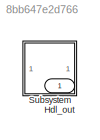
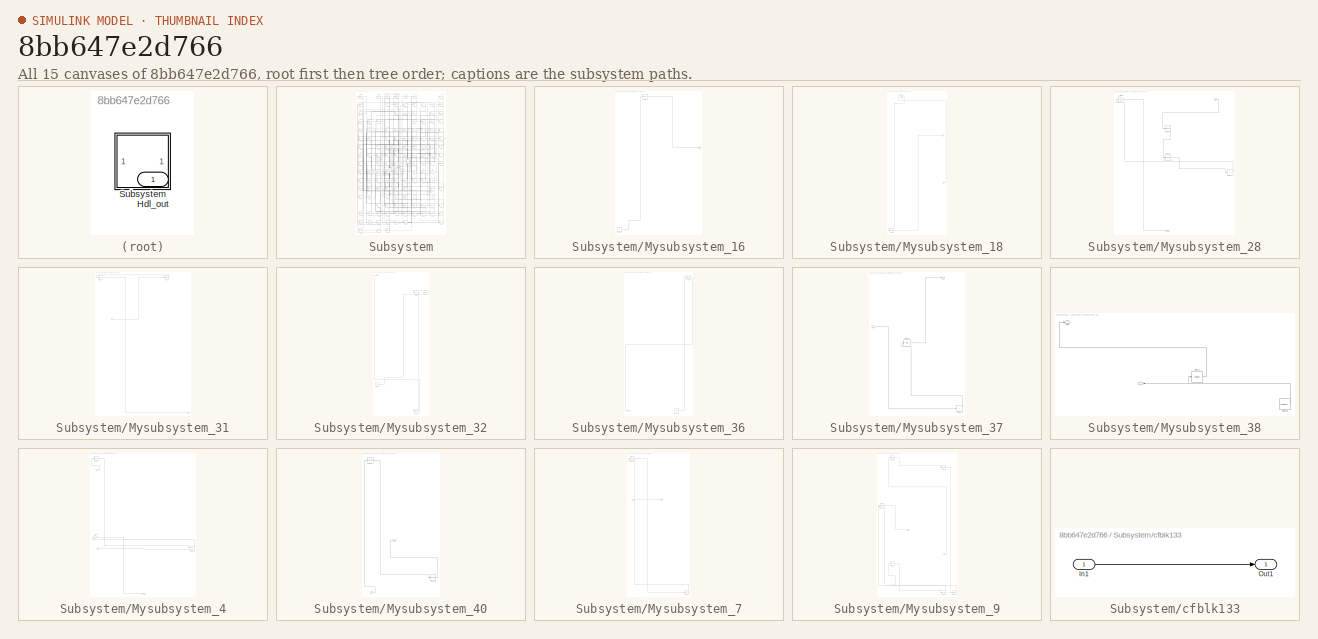
[diagram: thumbnail index - all 15 canvases of the model, root first then tree order]
MODEL slx_8bb647e2d766
KIND model
CONFIG AbsTol = auto
CONFIG EnableMultiTasking = off
CONFIG FixedStep = auto
CONFIG MaxStep = auto
CONFIG MinStep = auto
CONFIG RelTol = 1e-3
CONFIG SampleTimeConstraint = Unconstrained
CONFIG SolverName = VariableStepAuto
CONFIG StartTime = 0.0
CONFIG StopTime = 10.0
BLOCK [Outport] Hdl_out
  OutDataTypeStr = uint8
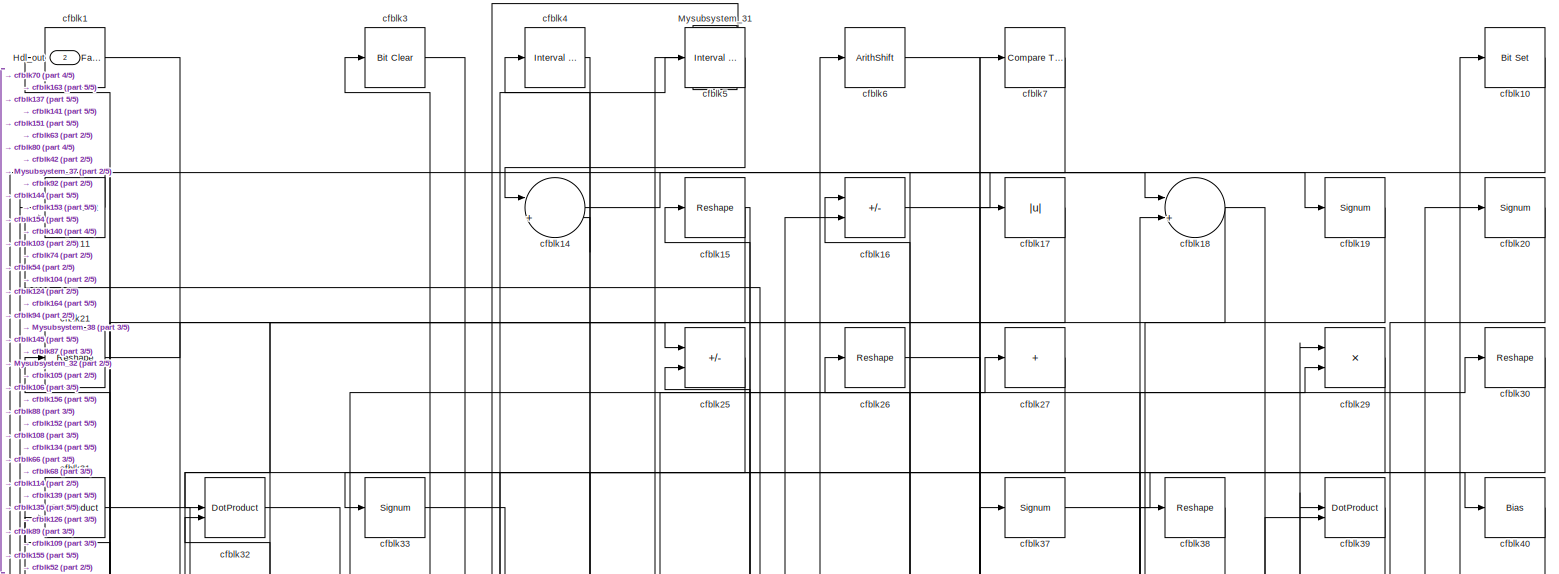
[diagram: Subsystem - part 1/5, full width, top band]
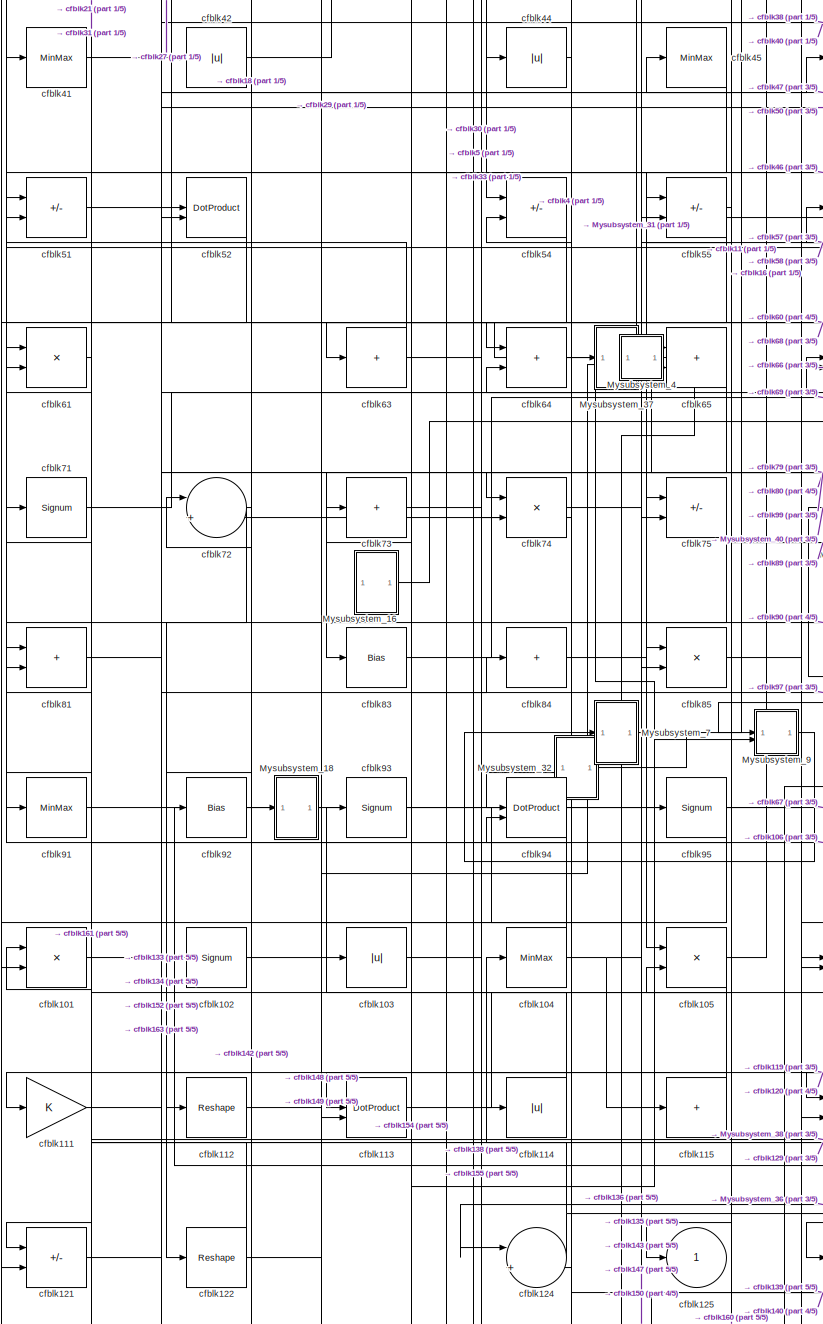
[diagram: Subsystem - part 2/5, middle left region]
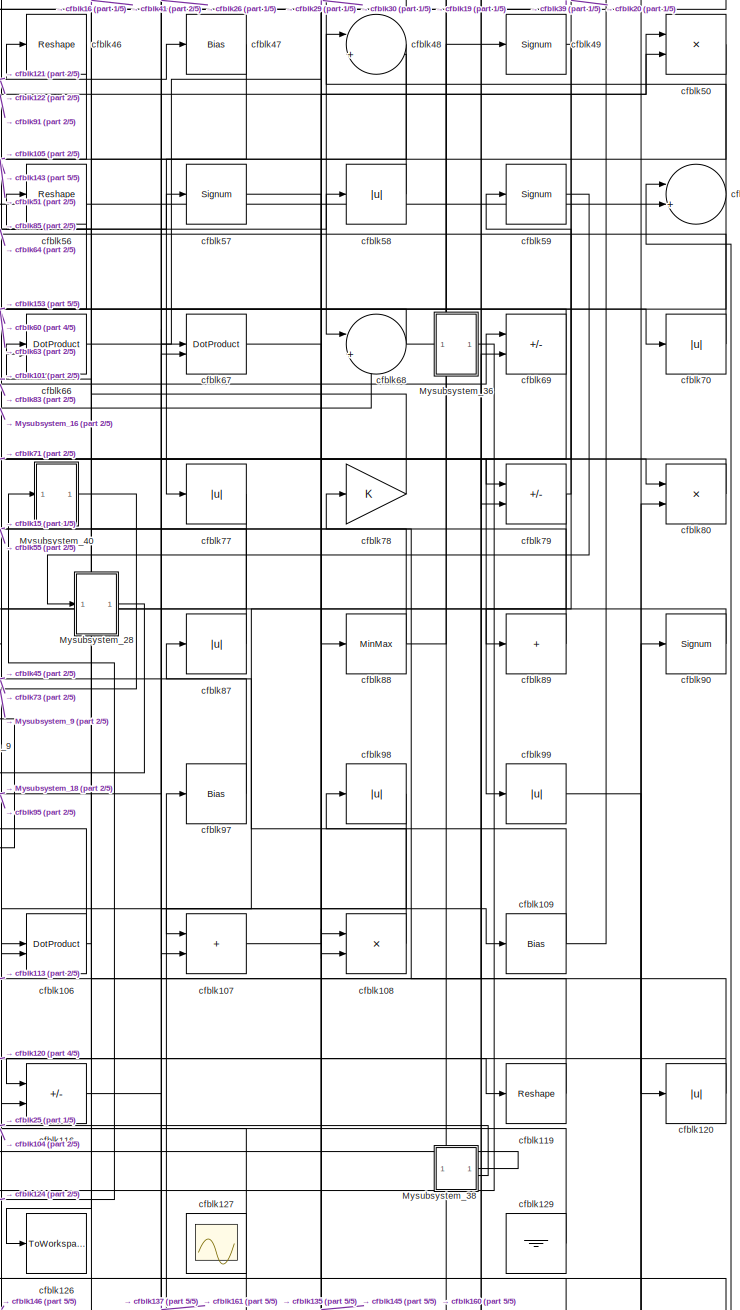
[diagram: Subsystem - part 3/5, middle right region]
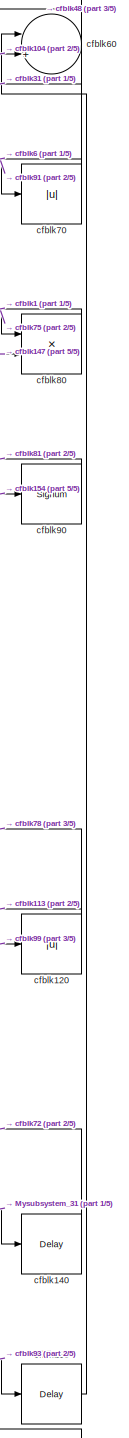
[diagram: Subsystem - part 4/5, middle right region]
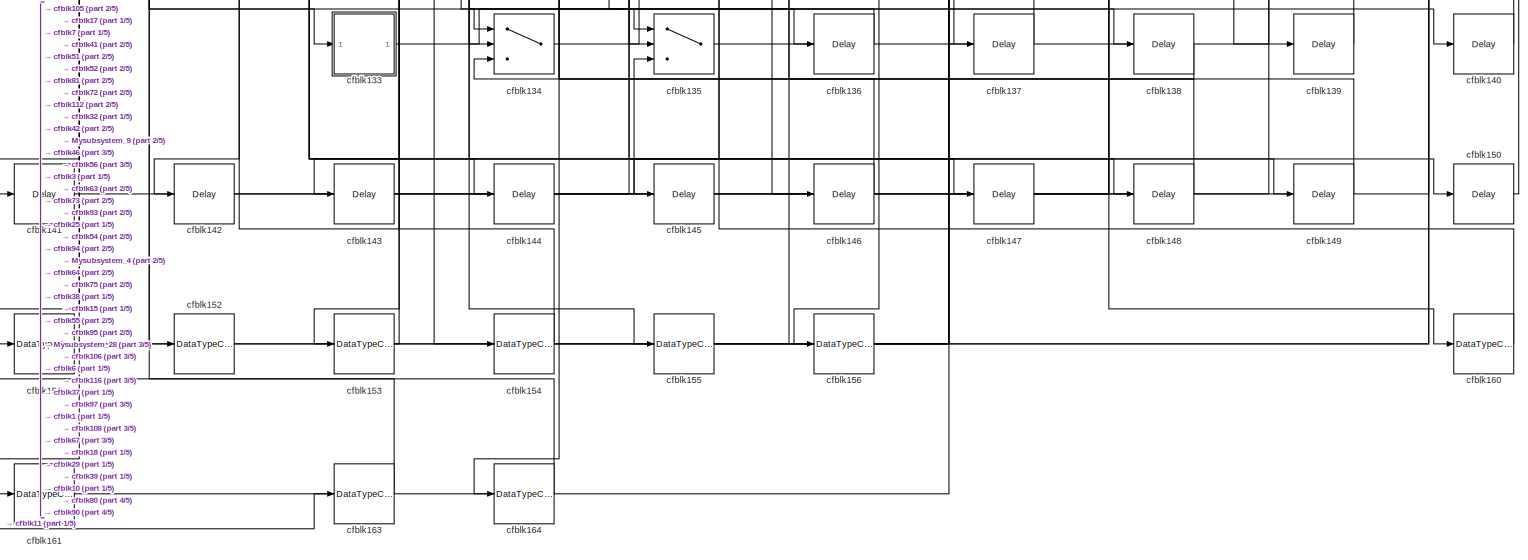
[diagram: Subsystem - part 5/5, full width, bottom band]
BLOCK [SubSystem] Subsystem
BLOCK [Outport] Subsystem/Hdl_out
  OutDataTypeStr = uint8
  Port = 2
BLOCK [SubSystem] Subsystem/Mysubsystem_16
  RTWFcnName = Mysubsystem_16
  RTWFcnNameOpts = User specified
  RTWFileNameOpts = Use function name
  RTWSystemCode = Reusable function
  TreatAsAtomicUnit = on
BLOCK [Outport] Subsystem/Mysubsystem_16/Out1
BLOCK [Constant] Subsystem/Mysubsystem_16/cfblk132
  SampleTime = -1
BLOCK [Bias] Subsystem/Mysubsystem_16/cfblk24
  Bias = 0.0
  SaturateOnIntegerOverflow = off
BLOCK [SubSystem] Subsystem/Mysubsystem_18
  RTWFcnName = Mysubsystem_18
  RTWFcnNameOpts = User specified
  RTWFileNameOpts = Use function name
  RTWSystemCode = Reusable function
  TreatAsAtomicUnit = on
BLOCK [Inport] Subsystem/Mysubsystem_18/In1
BLOCK [Outport] Subsystem/Mysubsystem_18/Out1
BLOCK [DataTypeConversion] Subsystem/Mysubsystem_18/cfblk162
  OutDataTypeStr = uint8
  RndMeth = Floor
  SaturateOnIntegerOverflow = off
BLOCK [Gain] Subsystem/Mysubsystem_18/cfblk23
BLOCK [SubSystem] Subsystem/Mysubsystem_28
  RTWFcnName = Mysubsystem_28
  RTWFcnNameOpts = User specified
  RTWFileNameOpts = Use function name
  RTWSystemCode = Reusable function
  TreatAsAtomicUnit = on
BLOCK [Inport] Subsystem/Mysubsystem_28/In1
BLOCK [Outport] Subsystem/Mysubsystem_28/Out1
BLOCK [Sum] Subsystem/Mysubsystem_28/cfblk110
  IconShape = rectangular
  Inputs = +
BLOCK [Gain] Subsystem/Mysubsystem_28/cfblk53
BLOCK [MinMax] Subsystem/Mysubsystem_28/cfblk76
BLOCK [Reshape] Subsystem/Mysubsystem_28/cfblk96
BLOCK [SubSystem] Subsystem/Mysubsystem_31
  RTWFcnName = Mysubsystem_31
  RTWFcnNameOpts = User specified
  RTWFileNameOpts = Use function name
  RTWSystemCode = Reusable function
  TreatAsAtomicUnit = on
BLOCK [Inport] Subsystem/Mysubsystem_31/U
BLOCK [Reference] Subsystem/Mysubsystem_31/cfblk2  REF=simulink/Logic and Bit
Operations/Bit Set
  LibrarySourceBlock = hdlsllib/Logic and Bit\nOperations/Bit Set
  SourceBlock = simulink/Logic and Bit\nOperations/Bit Set
  SourceType = Bit Set
BLOCK [Reference] Subsystem/Mysubsystem_31/cfblk8  REF=hdlsllib/Logic and Bit
Operations/Detect Rise
Nonnegative
  SourceBlock = hdlsllib/Logic and Bit\nOperations/Detect Rise\nNonnegative
  SourceType = Detect Rise Nonnegative
BLOCK [Outport] Subsystem/Mysubsystem_31/y
BLOCK [SubSystem] Subsystem/Mysubsystem_32
  RTWFcnName = Mysubsystem_32
  RTWFcnNameOpts = User specified
  RTWFileNameOpts = Use function name
  RTWSystemCode = Reusable function
  TreatAsAtomicUnit = on
BLOCK [Outport] Subsystem/Mysubsystem_32/Out1
BLOCK [Ground] Subsystem/Mysubsystem_32/cfblk131
BLOCK [DataTypeConversion] Subsystem/Mysubsystem_32/cfblk165
  OutDataTypeStr = uint8
  RndMeth = Floor
  SaturateOnIntegerOverflow = off
BLOCK [Bias] Subsystem/Mysubsystem_32/cfblk35
  Bias = 0.0
  SaturateOnIntegerOverflow = off
BLOCK [MinMax] Subsystem/Mysubsystem_32/cfblk36
BLOCK [SubSystem] Subsystem/Mysubsystem_36
  RTWFcnName = Mysubsystem_36
  RTWFcnNameOpts = User specified
  RTWFileNameOpts = Use function name
  RTWSystemCode = Reusable function
  TreatAsAtomicUnit = on
BLOCK [Ground] Subsystem/Mysubsystem_36/cfblk128
BLOCK [Reference] Subsystem/Mysubsystem_36/cfblk9  REF=hdlsllib/Logic and Bit
Operations/Interval Test
  SourceBlock = hdlsllib/Logic and Bit\nOperations/Interval Test
  SourceType = Interval Test
BLOCK [Outport] Subsystem/Mysubsystem_36/y
BLOCK [SubSystem] Subsystem/Mysubsystem_37
  RTWFcnName = Mysubsystem_37
  RTWFcnNameOpts = User specified
  RTWFileNameOpts = Use function name
  RTWSystemCode = Reusable function
  TreatAsAtomicUnit = on
BLOCK [Inport] Subsystem/Mysubsystem_37/In1
BLOCK [Outport] Subsystem/Mysubsystem_37/Out1
BLOCK [Bias] Subsystem/Mysubsystem_37/cfblk43
  Bias = 0.0
  SaturateOnIntegerOverflow = off
BLOCK [Sum] Subsystem/Mysubsystem_37/cfblk86
  IconShape = rectangular
  Inputs = +
BLOCK [SubSystem] Subsystem/Mysubsystem_38
  RTWFcnName = Mysubsystem_38
  RTWFcnNameOpts = User specified
  RTWFileNameOpts = Use function name
  RTWSystemCode = Reusable function
  TreatAsAtomicUnit = on
BLOCK [Outport] Subsystem/Mysubsystem_38/Out1
BLOCK [MinMax] Subsystem/Mysubsystem_38/cfblk117
BLOCK [Reference] Subsystem/Mysubsystem_38/cfblk130  REF=hdlsllib/Sources/Counter
Free-Running
  SourceBlock = hdlsllib/Sources/Counter\nFree-Running
  SourceType = Counter Free-Running
BLOCK [Outport] Subsystem/Mysubsystem_38/y
  Port = 2
BLOCK [SubSystem] Subsystem/Mysubsystem_4
  RTWFcnName = Mysubsystem_4
  RTWFcnNameOpts = User specified
  RTWFileNameOpts = Use function name
  RTWSystemCode = Reusable function
  TreatAsAtomicUnit = on
BLOCK [Inport] Subsystem/Mysubsystem_4/In1
BLOCK [Inport] Subsystem/Mysubsystem_4/In2
  Port = 2
BLOCK [Outport] Subsystem/Mysubsystem_4/Out1
BLOCK [Sum] Subsystem/Mysubsystem_4/cfblk100
  IconShape = rectangular
  Inputs = +-
BLOCK [Bias] Subsystem/Mysubsystem_4/cfblk12
  Bias = 0.0
  SaturateOnIntegerOverflow = off
BLOCK [Gain] Subsystem/Mysubsystem_4/cfblk82
BLOCK [SubSystem] Subsystem/Mysubsystem_40
  RTWFcnName = Mysubsystem_40
  RTWFcnNameOpts = User specified
  RTWFileNameOpts = Use function name
  RTWSystemCode = Reusable function
  TreatAsAtomicUnit = on
BLOCK [Inport] Subsystem/Mysubsystem_40/In1
BLOCK [Outport] Subsystem/Mysubsystem_40/Out1
BLOCK [Reshape] Subsystem/Mysubsystem_40/cfblk118
BLOCK [Reshape] Subsystem/Mysubsystem_40/cfblk34
BLOCK [SubSystem] Subsystem/Mysubsystem_7
  RTWFcnName = Mysubsystem_7
  RTWFcnNameOpts = User specified
  RTWFileNameOpts = Use function name
  RTWSystemCode = Reusable function
  TreatAsAtomicUnit = on
BLOCK [Inport] Subsystem/Mysubsystem_7/In1
BLOCK [Outport] Subsystem/Mysubsystem_7/Out1
BLOCK [DataTypeConversion] Subsystem/Mysubsystem_7/cfblk157
  OutDataTypeStr = uint8
  RndMeth = Floor
  SaturateOnIntegerOverflow = off
BLOCK [Reshape] Subsystem/Mysubsystem_7/cfblk22
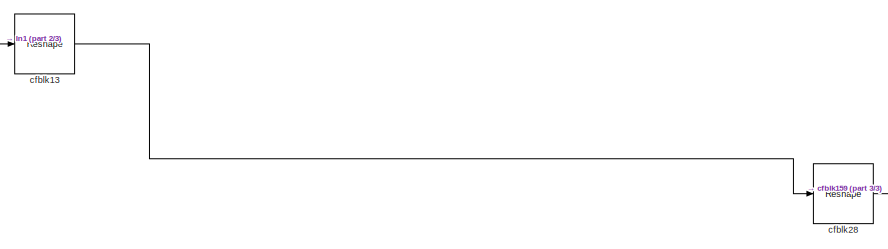
[diagram: Subsystem/Mysubsystem_9 - part 1/3, top center region]
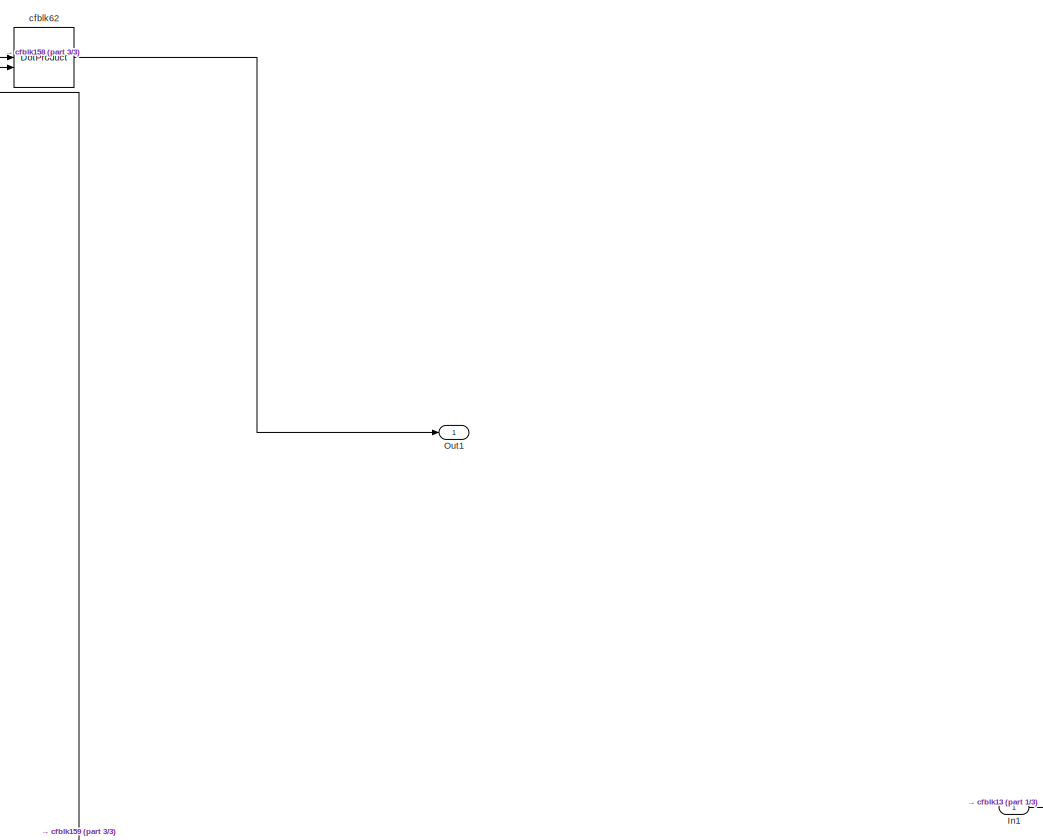
[diagram: Subsystem/Mysubsystem_9 - part 2/3, full width, middle band]
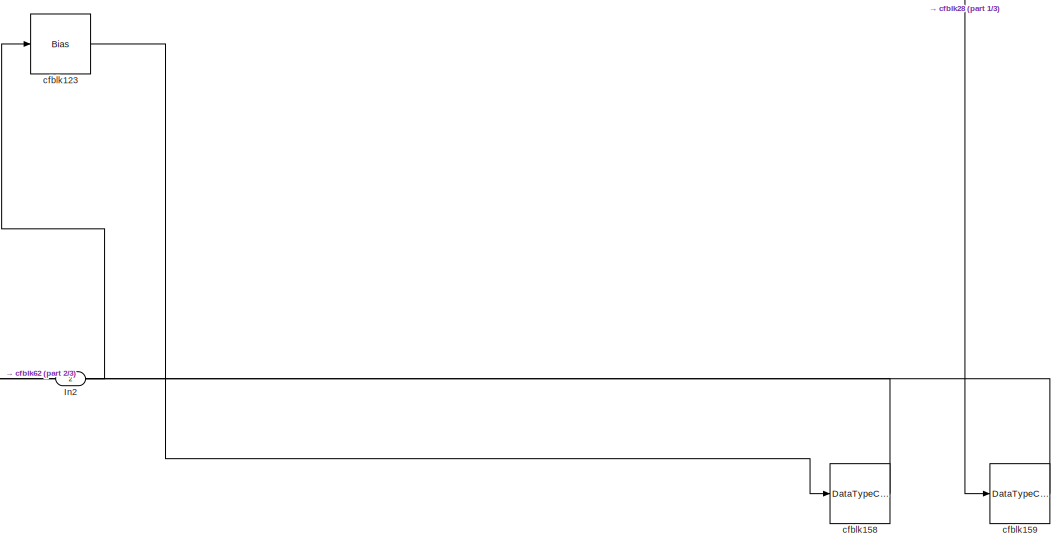
[diagram: Subsystem/Mysubsystem_9 - part 3/3, full width, bottom band]
BLOCK [SubSystem] Subsystem/Mysubsystem_9
  RTWFcnName = Mysubsystem_9
  RTWFcnNameOpts = User specified
  RTWFileNameOpts = Use function name
  RTWSystemCode = Reusable function
  TreatAsAtomicUnit = on
BLOCK [Inport] Subsystem/Mysubsystem_9/In1
BLOCK [Inport] Subsystem/Mysubsystem_9/In2
  Port = 2
BLOCK [Outport] Subsystem/Mysubsystem_9/Out1
BLOCK [Bias] Subsystem/Mysubsystem_9/cfblk123
  Bias = 0.0
  SaturateOnIntegerOverflow = off
BLOCK [Reshape] Subsystem/Mysubsystem_9/cfblk13
BLOCK [DataTypeConversion] Subsystem/Mysubsystem_9/cfblk158
  OutDataTypeStr = uint8
  RndMeth = Floor
  SaturateOnIntegerOverflow = off
BLOCK [DataTypeConversion] Subsystem/Mysubsystem_9/cfblk159
  OutDataTypeStr = uint8
  RndMeth = Floor
  SaturateOnIntegerOverflow = off
BLOCK [Reshape] Subsystem/Mysubsystem_9/cfblk28
BLOCK [DotProduct] Subsystem/Mysubsystem_9/cfblk62
  OutDataTypeStr = Inherit: Inherit via internal rule
BLOCK [Reference] Subsystem/cfblk1  REF=hdlsllib/Logic and Bit
Operations/Detect Fall
Negative
  SourceBlock = hdlsllib/Logic and Bit\nOperations/Detect Fall\nNegative
  SourceType = Detect Fall Negative
BLOCK [Reference] Subsystem/cfblk10  REF=simulink/Logic and Bit
Operations/Bit Set
  LibrarySourceBlock = hdlsllib/Logic and Bit\nOperations/Bit Set
  SourceBlock = simulink/Logic and Bit\nOperations/Bit Set
  SourceType = Bit Set
BLOCK [Product] Subsystem/cfblk101
  Inputs = */
  OutDataTypeStr = uint8
  RndMeth = Zero
  SaturateOnIntegerOverflow = on
BLOCK [Signum] Subsystem/cfblk102
BLOCK [Abs] Subsystem/cfblk103
  OutDataTypeStr = uint8
  SaturateOnIntegerOverflow = off
BLOCK [MinMax] Subsystem/cfblk104
  OutDataTypeStr = uint8
BLOCK [Product] Subsystem/cfblk105
  Inputs = */
  OutDataTypeStr = uint8
  RndMeth = Zero
  SaturateOnIntegerOverflow = on
BLOCK [DotProduct] Subsystem/cfblk106
  OutDataTypeStr = uint8
BLOCK [Sum] Subsystem/cfblk107
  IconShape = rectangular
  OutDataTypeStr = uint8
BLOCK [Product] Subsystem/cfblk108
  Inputs = */
  OutDataTypeStr = uint8
  RndMeth = Zero
  SaturateOnIntegerOverflow = on
BLOCK [Bias] Subsystem/cfblk109
  Bias = 0.0
  SaturateOnIntegerOverflow = off
BLOCK [DotProduct] Subsystem/cfblk11
  OutDataTypeStr = uint8
BLOCK [Gain] Subsystem/cfblk111
  OutDataTypeStr = uint8
BLOCK [Reshape] Subsystem/cfblk112
BLOCK [DotProduct] Subsystem/cfblk113
  OutDataTypeStr = uint8
BLOCK [Abs] Subsystem/cfblk114
  OutDataTypeStr = uint8
  SaturateOnIntegerOverflow = off
BLOCK [Sum] Subsystem/cfblk115
  IconShape = rectangular
  Inputs = +
  OutDataTypeStr = uint8
BLOCK [Sum] Subsystem/cfblk116
  IconShape = rectangular
  Inputs = +-
  OutDataTypeStr = uint8
BLOCK [Reshape] Subsystem/cfblk119
BLOCK [Abs] Subsystem/cfblk120
  OutDataTypeStr = uint8
  SaturateOnIntegerOverflow = off
BLOCK [Sum] Subsystem/cfblk121
  IconShape = rectangular
  Inputs = +-
  OutDataTypeStr = uint8
BLOCK [Reshape] Subsystem/cfblk122
BLOCK [Sum] Subsystem/cfblk124
  Inputs = |++
  OutDataTypeStr = uint8
BLOCK [Outport] Subsystem/cfblk125
  OutDataTypeStr = uint8
  VectorParamsAs1DForOutWhenUnconnected = off
BLOCK [ToWorkspace] Subsystem/cfblk126
  MaxDataPoints = inf
  SampleTime = -1
  SaveFormat = Timeseries
  VariableName = simout
BLOCK [Scope] Subsystem/cfblk127
  Floating = on
  NumInputPorts = 1
  ScopeSpecificationString = Simulink.scopes.TimeScopeBlockCfg('CurrentConfiguration', extmgr.ConfigurationSet(extmgr.Configuration('Core','General UI',true,'FigureColor',[0.156862745098039 0.156862745098039 0.156862745098039]),extmgr.Configuration('Core','Source UI',true),extmgr.Configuration('Sources','WiredSimulink',true,'DataLoggingSaveFormat','StructureWithTime','DataLoggingLimitDataPoints',true,'DataLoggingDecimation','...<+2674ch>
BLOCK [Ground] Subsystem/cfblk129
BLOCK [SubSystem] Subsystem/cfblk133
  LibrarySourceBlock = hdlsllib/Ports &\nSubsystems/Subsystem
BLOCK [Inport] Subsystem/cfblk133/In1
BLOCK [Outport] Subsystem/cfblk133/Out1
BLOCK [Switch] Subsystem/cfblk134
  InputSameDT = off
  OutDataTypeStr = uint8
  SaturateOnIntegerOverflow = off
BLOCK [Switch] Subsystem/cfblk135
  InputSameDT = off
  OutDataTypeStr = uint8
  SaturateOnIntegerOverflow = off
BLOCK [Delay] Subsystem/cfblk136
  InputPortMap = u0
  SampleTime = 1
BLOCK [Delay] Subsystem/cfblk137
  InputPortMap = u0
  SampleTime = 1
BLOCK [Delay] Subsystem/cfblk138
  InputPortMap = u0
  SampleTime = 1
BLOCK [Delay] Subsystem/cfblk139
  InputPortMap = u0
  SampleTime = 1
BLOCK [Sum] Subsystem/cfblk14
  Inputs = |++
  OutDataTypeStr = uint8
BLOCK [Delay] Subsystem/cfblk140
  InputPortMap = u0
  SampleTime = 1
BLOCK [Delay] Subsystem/cfblk141
  InputPortMap = u0
  SampleTime = 1
BLOCK [Delay] Subsystem/cfblk142
  InputPortMap = u0
  SampleTime = 1
BLOCK [Delay] Subsystem/cfblk143
  InputPortMap = u0
  SampleTime = 1
BLOCK [Delay] Subsystem/cfblk144
  InputPortMap = u0
  SampleTime = 1
BLOCK [Delay] Subsystem/cfblk145
  InputPortMap = u0
  SampleTime = 1
BLOCK [Delay] Subsystem/cfblk146
  InputPortMap = u0
  SampleTime = 1
BLOCK [Delay] Subsystem/cfblk147
  InputPortMap = u0
  SampleTime = 1
BLOCK [Delay] Subsystem/cfblk148
  InputPortMap = u0
  SampleTime = 1
BLOCK [Delay] Subsystem/cfblk149
  InputPortMap = u0
  SampleTime = 1
BLOCK [Reshape] Subsystem/cfblk15
BLOCK [Delay] Subsystem/cfblk150
  InputPortMap = u0
  SampleTime = 1
BLOCK [DataTypeConversion] Subsystem/cfblk151
  OutDataTypeStr = uint8
  RndMeth = Floor
  SaturateOnIntegerOverflow = off
BLOCK [DataTypeConversion] Subsystem/cfblk152
  OutDataTypeStr = uint8
  RndMeth = Floor
  SaturateOnIntegerOverflow = off
BLOCK [DataTypeConversion] Subsystem/cfblk153
  OutDataTypeStr = uint8
  RndMeth = Floor
  SaturateOnIntegerOverflow = off
BLOCK [DataTypeConversion] Subsystem/cfblk154
  OutDataTypeStr = uint8
  RndMeth = Floor
  SaturateOnIntegerOverflow = off
BLOCK [DataTypeConversion] Subsystem/cfblk155
  OutDataTypeStr = uint8
  RndMeth = Floor
  SaturateOnIntegerOverflow = off
BLOCK [DataTypeConversion] Subsystem/cfblk156
  OutDataTypeStr = uint8
  RndMeth = Floor
  SaturateOnIntegerOverflow = off
BLOCK [Sum] Subsystem/cfblk16
  IconShape = rectangular
  Inputs = +-
  OutDataTypeStr = uint8
BLOCK [DataTypeConversion] Subsystem/cfblk160
  OutDataTypeStr = uint8
  RndMeth = Floor
  SaturateOnIntegerOverflow = off
BLOCK [DataTypeConversion] Subsystem/cfblk161
  OutDataTypeStr = uint8
  RndMeth = Floor
  SaturateOnIntegerOverflow = off
BLOCK [DataTypeConversion] Subsystem/cfblk163
  OutDataTypeStr = uint8
  RndMeth = Floor
  SaturateOnIntegerOverflow = off
BLOCK [DataTypeConversion] Subsystem/cfblk164
  OutDataTypeStr = uint8
  RndMeth = Floor
  SaturateOnIntegerOverflow = off
BLOCK [Abs] Subsystem/cfblk17
  OutDataTypeStr = uint8
  SaturateOnIntegerOverflow = off
BLOCK [Sum] Subsystem/cfblk18
  Inputs = |++
  OutDataTypeStr = uint8
BLOCK [Signum] Subsystem/cfblk19
BLOCK [Signum] Subsystem/cfblk20
BLOCK [Reshape] Subsystem/cfblk21
BLOCK [Sum] Subsystem/cfblk25
  IconShape = rectangular
  Inputs = +-
  OutDataTypeStr = uint8
BLOCK [Reshape] Subsystem/cfblk26
BLOCK [Sum] Subsystem/cfblk27
  IconShape = rectangular
  Inputs = +
  OutDataTypeStr = uint8
BLOCK [Product] Subsystem/cfblk29
  Inputs = */
  OutDataTypeStr = uint8
  RndMeth = Zero
  SaturateOnIntegerOverflow = on
BLOCK [Reference] Subsystem/cfblk3  REF=simulink/Logic and Bit
Operations/Bit Clear
  LibrarySourceBlock = hdlsllib/Logic and Bit\nOperations/Bit Clear
  SourceBlock = simulink/Logic and Bit\nOperations/Bit Clear
  SourceType = Bit Clear
BLOCK [Reshape] Subsystem/cfblk30
BLOCK [DotProduct] Subsystem/cfblk31
  OutDataTypeStr = uint8
BLOCK [DotProduct] Subsystem/cfblk32
  OutDataTypeStr = uint8
BLOCK [Signum] Subsystem/cfblk33
BLOCK [Signum] Subsystem/cfblk37
BLOCK [Reshape] Subsystem/cfblk38
BLOCK [DotProduct] Subsystem/cfblk39
  OutDataTypeStr = uint8
BLOCK [Reference] Subsystem/cfblk4  REF=hdlsllib/Logic and Bit
Operations/Interval Test
  SourceBlock = hdlsllib/Logic and Bit\nOperations/Interval Test
  SourceType = Interval Test
BLOCK [Bias] Subsystem/cfblk40
  Bias = 0.0
  SaturateOnIntegerOverflow = off
BLOCK [MinMax] Subsystem/cfblk41
  OutDataTypeStr = uint8
BLOCK [Abs] Subsystem/cfblk42
  OutDataTypeStr = uint8
  SaturateOnIntegerOverflow = off
BLOCK [Abs] Subsystem/cfblk44
  OutDataTypeStr = uint8
  SaturateOnIntegerOverflow = off
BLOCK [MinMax] Subsystem/cfblk45
  OutDataTypeStr = uint8
BLOCK [Reshape] Subsystem/cfblk46
BLOCK [Bias] Subsystem/cfblk47
  Bias = 0.0
  SaturateOnIntegerOverflow = off
BLOCK [Sum] Subsystem/cfblk48
  Inputs = |++
  OutDataTypeStr = uint8
BLOCK [Signum] Subsystem/cfblk49
BLOCK [Reference] Subsystem/cfblk5  REF=hdlsllib/Logic and Bit
Operations/Interval Test
  SourceBlock = hdlsllib/Logic and Bit\nOperations/Interval Test
  SourceType = Interval Test
BLOCK [Product] Subsystem/cfblk50
  Inputs = */
  OutDataTypeStr = uint8
  RndMeth = Zero
  SaturateOnIntegerOverflow = on
BLOCK [Sum] Subsystem/cfblk51
  IconShape = rectangular
  Inputs = +-
  OutDataTypeStr = uint8
BLOCK [DotProduct] Subsystem/cfblk52
  OutDataTypeStr = uint8
BLOCK [Sum] Subsystem/cfblk54
  IconShape = rectangular
  Inputs = +-
  OutDataTypeStr = uint8
BLOCK [Sum] Subsystem/cfblk55
  IconShape = rectangular
  Inputs = +-
  OutDataTypeStr = uint8
BLOCK [Reshape] Subsystem/cfblk56
BLOCK [Signum] Subsystem/cfblk57
BLOCK [Abs] Subsystem/cfblk58
  OutDataTypeStr = uint8
  SaturateOnIntegerOverflow = off
BLOCK [Signum] Subsystem/cfblk59
BLOCK [ArithShift] Subsystem/cfblk6
  BitShiftNumber = 8
  InputPortMap = u0
BLOCK [Sum] Subsystem/cfblk60
  Inputs = |++
  OutDataTypeStr = uint8
BLOCK [Product] Subsystem/cfblk61
  Inputs = */
  OutDataTypeStr = uint8
  RndMeth = Zero
  SaturateOnIntegerOverflow = on
BLOCK [Sum] Subsystem/cfblk63
  IconShape = rectangular
  Inputs = +
  OutDataTypeStr = uint8
BLOCK [Sum] Subsystem/cfblk64
  IconShape = rectangular
  OutDataTypeStr = uint8
BLOCK [Sum] Subsystem/cfblk65
  IconShape = rectangular
  OutDataTypeStr = uint8
BLOCK [DotProduct] Subsystem/cfblk66
  OutDataTypeStr = uint8
BLOCK [DotProduct] Subsystem/cfblk67
  OutDataTypeStr = uint8
BLOCK [Sum] Subsystem/cfblk68
  Inputs = |++
  OutDataTypeStr = uint8
BLOCK [Sum] Subsystem/cfblk69
  IconShape = rectangular
  Inputs = +-
  OutDataTypeStr = uint8
BLOCK [Reference] Subsystem/cfblk7  REF=hdlsllib/Logic and Bit
Operations/Compare
To Constant
  SourceBlock = hdlsllib/Logic and Bit\nOperations/Compare\nTo Constant
  SourceType = Compare To Constant
BLOCK [Abs] Subsystem/cfblk70
  OutDataTypeStr = uint8
  SaturateOnIntegerOverflow = off
BLOCK [Signum] Subsystem/cfblk71
BLOCK [Sum] Subsystem/cfblk72
  Inputs = |++
  OutDataTypeStr = uint8
BLOCK [Sum] Subsystem/cfblk73
  IconShape = rectangular
  Inputs = +
  OutDataTypeStr = uint8
BLOCK [Product] Subsystem/cfblk74
  Inputs = */
  OutDataTypeStr = uint8
  RndMeth = Zero
  SaturateOnIntegerOverflow = on
BLOCK [Sum] Subsystem/cfblk75
  IconShape = rectangular
  Inputs = +-
  OutDataTypeStr = uint8
BLOCK [Abs] Subsystem/cfblk77
  OutDataTypeStr = uint8
  SaturateOnIntegerOverflow = off
BLOCK [Gain] Subsystem/cfblk78
  OutDataTypeStr = uint8
BLOCK [Sum] Subsystem/cfblk79
  IconShape = rectangular
  Inputs = +-
  OutDataTypeStr = uint8
BLOCK [Product] Subsystem/cfblk80
  Inputs = */
  OutDataTypeStr = uint8
  RndMeth = Zero
  SaturateOnIntegerOverflow = on
BLOCK [Sum] Subsystem/cfblk81
  IconShape = rectangular
  OutDataTypeStr = uint8
BLOCK [Bias] Subsystem/cfblk83
  Bias = 0.0
  SaturateOnIntegerOverflow = off
BLOCK [Sum] Subsystem/cfblk84
  IconShape = rectangular
  Inputs = +
  OutDataTypeStr = uint8
BLOCK [Product] Subsystem/cfblk85
  Inputs = */
  OutDataTypeStr = uint8
  RndMeth = Zero
  SaturateOnIntegerOverflow = on
BLOCK [Abs] Subsystem/cfblk87
  OutDataTypeStr = uint8
  SaturateOnIntegerOverflow = off
BLOCK [MinMax] Subsystem/cfblk88
  OutDataTypeStr = uint8
BLOCK [Sum] Subsystem/cfblk89
  IconShape = rectangular
  Inputs = +
  OutDataTypeStr = uint8
BLOCK [Signum] Subsystem/cfblk90
BLOCK [MinMax] Subsystem/cfblk91
  OutDataTypeStr = uint8
BLOCK [Bias] Subsystem/cfblk92
  Bias = 0.0
  SaturateOnIntegerOverflow = off
BLOCK [Signum] Subsystem/cfblk93
BLOCK [DotProduct] Subsystem/cfblk94
  OutDataTypeStr = uint8
BLOCK [Signum] Subsystem/cfblk95
BLOCK [Bias] Subsystem/cfblk97
  Bias = 0.0
  SaturateOnIntegerOverflow = off
BLOCK [Abs] Subsystem/cfblk98
  OutDataTypeStr = uint8
  SaturateOnIntegerOverflow = off
BLOCK [Abs] Subsystem/cfblk99
  OutDataTypeStr = uint8
  SaturateOnIntegerOverflow = off
LINE Subsystem/Mysubsystem_16/cfblk132:1 -> Subsystem/Mysubsystem_16/cfblk24:1
LINE Subsystem/Mysubsystem_16/cfblk24:1 -> Subsystem/Mysubsystem_16/Out1:1
LINE Subsystem/Mysubsystem_16:1 -> Subsystem/cfblk68:2
LINE Subsystem/Mysubsystem_18/In1:1 -> Subsystem/Mysubsystem_18/cfblk23:1
LINE Subsystem/Mysubsystem_18/cfblk162:1 -> Subsystem/Mysubsystem_18/Out1:1
LINE Subsystem/Mysubsystem_18/cfblk23:1 -> Subsystem/Mysubsystem_18/cfblk162:1
LINE Subsystem/Mysubsystem_18:1 -> Subsystem/cfblk67:2
LINE Subsystem/Mysubsystem_28/In1:1 -> Subsystem/Mysubsystem_28/cfblk76:1
LINE Subsystem/Mysubsystem_28/cfblk110:1 -> Subsystem/Mysubsystem_28/cfblk53:1
LINE Subsystem/Mysubsystem_28/cfblk53:1 -> Subsystem/Mysubsystem_28/Out1:1
LINE Subsystem/Mysubsystem_28/cfblk76:1 -> Subsystem/Mysubsystem_28/cfblk96:1
LINE Subsystem/Mysubsystem_28/cfblk96:1 -> Subsystem/Mysubsystem_28/cfblk110:1
LINE Subsystem/Mysubsystem_28:1 -> Subsystem/cfblk146:1
LINE Subsystem/Mysubsystem_31/U:1 -> Subsystem/Mysubsystem_31/cfblk8:1
LINE Subsystem/Mysubsystem_31/cfblk2:1 -> Subsystem/Mysubsystem_31/y:1
LINE Subsystem/Mysubsystem_31/cfblk8:1 -> Subsystem/Mysubsystem_31/cfblk2:1
LINE Subsystem/Mysubsystem_31:1 -> Subsystem/cfblk140:1
LINE Subsystem/Mysubsystem_32/cfblk131:1 -> Subsystem/Mysubsystem_32/cfblk36:1
LINE Subsystem/Mysubsystem_32/cfblk165:1 -> Subsystem/Mysubsystem_32/Out1:1
LINE Subsystem/Mysubsystem_32/cfblk35:1 -> Subsystem/Mysubsystem_32/cfblk165:1
LINE Subsystem/Mysubsystem_32/cfblk36:1 -> Subsystem/Mysubsystem_32/cfblk35:1
LINE Subsystem/Mysubsystem_32:1 -> Subsystem/cfblk11:2
LINE Subsystem/Mysubsystem_36/cfblk128:1 -> Subsystem/Mysubsystem_36/cfblk9:1
LINE Subsystem/Mysubsystem_36/cfblk9:1 -> Subsystem/Mysubsystem_36/y:1
LINE Subsystem/Mysubsystem_36:1 -> Subsystem/cfblk124:1
LINE Subsystem/Mysubsystem_37/In1:1 -> Subsystem/Mysubsystem_37/cfblk86:1
LINE Subsystem/Mysubsystem_37/cfblk43:1 -> Subsystem/Mysubsystem_37/Out1:1
LINE Subsystem/Mysubsystem_37/cfblk86:1 -> Subsystem/Mysubsystem_37/cfblk43:1
LINE Subsystem/Mysubsystem_37:1 -> Subsystem/Mysubsystem_31:1
LINE Subsystem/Mysubsystem_38/cfblk117:1 -> Subsystem/Mysubsystem_38/Out1:1
NET Subsystem/Mysubsystem_38/cfblk130:1 -> Subsystem/Mysubsystem_38/cfblk117:1, Subsystem/Mysubsystem_38/y:1
LINE Subsystem/Mysubsystem_38:1 -> Subsystem/Mysubsystem_18:1
NET Subsystem/Mysubsystem_38:2 -> Subsystem/cfblk101:1, Subsystem/cfblk25:2
LINE Subsystem/Mysubsystem_4/In1:1 -> Subsystem/Mysubsystem_4/cfblk12:1
LINE Subsystem/Mysubsystem_4/In2:1 -> Subsystem/Mysubsystem_4/cfblk100:2
LINE Subsystem/Mysubsystem_4/cfblk100:1 -> Subsystem/Mysubsystem_4/cfblk82:1
LINE Subsystem/Mysubsystem_4/cfblk12:1 -> Subsystem/Mysubsystem_4/cfblk100:1
LINE Subsystem/Mysubsystem_4/cfblk82:1 -> Subsystem/Mysubsystem_4/Out1:1
LINE Subsystem/Mysubsystem_40/In1:1 -> Subsystem/Mysubsystem_40/cfblk34:1
LINE Subsystem/Mysubsystem_40/cfblk118:1 -> Subsystem/Mysubsystem_40/Out1:1
LINE Subsystem/Mysubsystem_40/cfblk34:1 -> Subsystem/Mysubsystem_40/cfblk118:1
LINE Subsystem/Mysubsystem_40:1 -> Subsystem/Mysubsystem_9:1
LINE Subsystem/Mysubsystem_4:1 -> Subsystem/cfblk136:1
LINE Subsystem/Mysubsystem_7/In1:1 -> Subsystem/Mysubsystem_7/cfblk157:1
LINE Subsystem/Mysubsystem_7/cfblk157:1 -> Subsystem/Mysubsystem_7/cfblk22:1
LINE Subsystem/Mysubsystem_7/cfblk22:1 -> Subsystem/Mysubsystem_7/Out1:1
LINE Subsystem/Mysubsystem_7:1 -> Subsystem/Mysubsystem_4:1
LINE Subsystem/Mysubsystem_9/In1:1 -> Subsystem/Mysubsystem_9/cfblk13:1
LINE Subsystem/Mysubsystem_9/In2:1 -> Subsystem/Mysubsystem_9/cfblk123:1
LINE Subsystem/Mysubsystem_9/cfblk123:1 -> Subsystem/Mysubsystem_9/cfblk158:1
LINE Subsystem/Mysubsystem_9/cfblk13:1 -> Subsystem/Mysubsystem_9/cfblk28:1
LINE Subsystem/Mysubsystem_9/cfblk158:1 -> Subsystem/Mysubsystem_9/cfblk62:1
LINE Subsystem/Mysubsystem_9/cfblk159:1 -> Subsystem/Mysubsystem_9/cfblk62:2
LINE Subsystem/Mysubsystem_9/cfblk28:1 -> Subsystem/Mysubsystem_9/cfblk159:1
LINE Subsystem/Mysubsystem_9/cfblk62:1 -> Subsystem/Mysubsystem_9/Out1:1
LINE Subsystem/Mysubsystem_9:1 -> Subsystem/Mysubsystem_7:1
NET Subsystem/cfblk101:1 -> Subsystem/cfblk44:1, Subsystem/cfblk66:2
LINE Subsystem/cfblk102:1 -> Subsystem/cfblk93:1
LINE Subsystem/cfblk103:1 -> Subsystem/cfblk5:1
NET Subsystem/cfblk104:1 -> Subsystem/cfblk115:1, Subsystem/cfblk31:2, Subsystem/cfblk4:1, Subsystem/cfblk60:2
NET Subsystem/cfblk105:1 -> Subsystem/cfblk161:1, Subsystem/cfblk16:2
NET Subsystem/cfblk106:1 -> Subsystem/cfblk16:1, Subsystem/cfblk41:1
LINE Subsystem/cfblk107:1 -> Subsystem/cfblk50:1
LINE Subsystem/cfblk108:1 -> Subsystem/cfblk98:1
NET Subsystem/cfblk109:1 -> Subsystem/cfblk20:1, Subsystem/cfblk87:1
LINE Subsystem/cfblk10:1 -> Subsystem/cfblk156:1
LINE Subsystem/cfblk111:1 -> Subsystem/cfblk84:1
LINE Subsystem/cfblk112:1 -> Subsystem/cfblk148:1
LINE Subsystem/cfblk113:1 -> Subsystem/cfblk69:2
LINE Subsystem/cfblk114:1 -> Subsystem/cfblk103:1
LINE Subsystem/cfblk115:1 -> Subsystem/cfblk61:2
LINE Subsystem/cfblk116:1 -> Subsystem/cfblk137:1
LINE Subsystem/cfblk119:1 -> Subsystem/cfblk66:1
LINE Subsystem/cfblk11:1 -> Subsystem/cfblk163:1
NET Subsystem/cfblk120:1 -> Subsystem/cfblk113:1, Subsystem/cfblk78:1
LINE Subsystem/cfblk121:1 -> Subsystem/cfblk46:1
NET Subsystem/cfblk122:1 -> Subsystem/cfblk47:1, Subsystem/cfblk51:2
NET Subsystem/cfblk124:1 -> Subsystem/Mysubsystem_40:1, Subsystem/cfblk71:1, Subsystem/cfblk81:2
LINE Subsystem/cfblk129:1 -> Subsystem/cfblk104:1
LINE Subsystem/cfblk133/In1:1 -> Subsystem/cfblk133/Out1:1
LINE Subsystem/cfblk133:1 -> Subsystem/cfblk135:1
LINE Subsystem/cfblk134:1 -> Subsystem/cfblk38:1
NET Subsystem/cfblk135:1 -> Subsystem/cfblk39:1, Subsystem/cfblk97:1
LINE Subsystem/cfblk136:1 -> Subsystem/cfblk134:2
LINE Subsystem/cfblk137:1 -> Subsystem/cfblk1:1
LINE Subsystem/cfblk138:1 -> Subsystem/cfblk134:3
LINE Subsystem/cfblk139:1 -> Subsystem/cfblk105:2
LINE Subsystem/cfblk140:1 -> Subsystem/cfblk72:2
LINE Subsystem/cfblk141:1 -> Subsystem/cfblk18:2
LINE Subsystem/cfblk142:1 -> Subsystem/cfblk135:3
LINE Subsystem/cfblk143:1 -> Subsystem/cfblk75:2
LINE Subsystem/cfblk144:1 -> Subsystem/cfblk29:1
LINE Subsystem/cfblk145:1 -> Subsystem/cfblk108:1
LINE Subsystem/cfblk146:1 -> Subsystem/cfblk106:1
LINE Subsystem/cfblk147:1 -> Subsystem/cfblk80:2
LINE Subsystem/cfblk148:1 -> Subsystem/cfblk54:2
LINE Subsystem/cfblk149:1 -> Subsystem/cfblk94:2
LINE Subsystem/cfblk14:1 -> Subsystem/cfblk19:1
LINE Subsystem/cfblk150:1 -> Subsystem/cfblk60:1
NET Subsystem/cfblk151:1 -> Subsystem/cfblk17:1, Subsystem/cfblk6:1
LINE Subsystem/cfblk152:1 -> Subsystem/cfblk7:1
LINE Subsystem/cfblk153:1 -> Subsystem/cfblk3:1
NET Subsystem/cfblk154:1 -> Subsystem/Mysubsystem_9:2, Subsystem/cfblk32:2, Subsystem/cfblk90:1
LINE Subsystem/cfblk155:1 -> Subsystem/cfblk10:1
LINE Subsystem/cfblk156:1 -> Subsystem/cfblk37:1
NET Subsystem/cfblk15:1 -> Subsystem/cfblk145:1, Subsystem/cfblk32:1
NET Subsystem/cfblk160:1 -> Subsystem/cfblk55:2, Subsystem/cfblk95:1
LINE Subsystem/cfblk161:1 -> Subsystem/cfblk67:1
LINE Subsystem/cfblk163:1 -> Subsystem/cfblk52:1
LINE Subsystem/cfblk164:1 -> Subsystem/cfblk11:1
LINE Subsystem/cfblk16:1 -> Subsystem/cfblk18:1
LINE Subsystem/cfblk17:1 -> Subsystem/cfblk141:1
NET Subsystem/cfblk18:1 -> Subsystem/cfblk139:1, Subsystem/cfblk92:1
LINE Subsystem/cfblk19:1 -> Subsystem/cfblk68:1
LINE Subsystem/cfblk1:1 -> Subsystem/cfblk80:1
LINE Subsystem/cfblk20:1 -> Subsystem/cfblk89:1
LINE Subsystem/cfblk21:1 -> Subsystem/cfblk25:1
LINE Subsystem/cfblk25:1 -> Subsystem/cfblk164:1
LINE Subsystem/cfblk26:1 -> Subsystem/cfblk109:1
LINE Subsystem/cfblk27:1 -> Subsystem/cfblk42:1
NET Subsystem/cfblk29:1 -> Subsystem/cfblk108:2, Subsystem/cfblk33:1
LINE Subsystem/cfblk30:1 -> Subsystem/cfblk74:2
LINE Subsystem/cfblk31:1 -> Subsystem/Mysubsystem_37:1
LINE Subsystem/cfblk32:1 -> Subsystem/cfblk144:1
LINE Subsystem/cfblk33:1 -> Subsystem/cfblk54:1
LINE Subsystem/cfblk37:1 -> Subsystem/cfblk40:1
LINE Subsystem/cfblk38:1 -> Subsystem/cfblk114:1
LINE Subsystem/cfblk39:1 -> Subsystem/cfblk126:1
LINE Subsystem/cfblk3:1 -> Subsystem/cfblk154:1
LINE Subsystem/cfblk40:1 -> Subsystem/cfblk52:2
LINE Subsystem/cfblk41:1 -> Subsystem/cfblk134:1
NET Subsystem/cfblk42:1 -> Subsystem/cfblk149:1, Subsystem/cfblk29:2
LINE Subsystem/cfblk44:1 -> Subsystem/cfblk74:1
LINE Subsystem/cfblk45:1 -> Subsystem/cfblk121:1
NET Subsystem/cfblk46:1 -> Subsystem/cfblk105:1, Subsystem/cfblk143:1, Subsystem/cfblk85:2
LINE Subsystem/cfblk47:1 -> Subsystem/cfblk51:1
LINE Subsystem/cfblk48:1 -> Subsystem/cfblk116:1
LINE Subsystem/cfblk49:1 -> Subsystem/cfblk79:1
NET Subsystem/cfblk4:1 -> Subsystem/cfblk124:2, Subsystem/cfblk14:2
LINE Subsystem/cfblk50:1 -> Subsystem/cfblk77:1
LINE Subsystem/cfblk51:1 -> Subsystem/cfblk152:1
LINE Subsystem/cfblk52:1 -> Subsystem/cfblk61:1
LINE Subsystem/cfblk54:1 -> Subsystem/cfblk112:1
NET Subsystem/cfblk55:1 -> Subsystem/cfblk101:2, Subsystem/cfblk125:1
LINE Subsystem/cfblk56:1 -> Subsystem/cfblk153:1
LINE Subsystem/cfblk57:1 -> Subsystem/cfblk88:1
LINE Subsystem/cfblk58:1 -> Subsystem/cfblk48:2
LINE Subsystem/cfblk59:1 -> Subsystem/Mysubsystem_28:1
LINE Subsystem/cfblk5:1 -> Subsystem/cfblk14:1
NET Subsystem/cfblk60:1 -> Subsystem/cfblk48:1, Subsystem/cfblk91:1
LINE Subsystem/cfblk61:1 -> Subsystem/cfblk111:1
NET Subsystem/cfblk63:1 -> Subsystem/cfblk138:1, Subsystem/cfblk21:1
NET Subsystem/cfblk64:1 -> Subsystem/cfblk147:1, Subsystem/cfblk57:1, Subsystem/cfblk99:1
LINE Subsystem/cfblk65:1 -> Subsystem/cfblk83:1
LINE Subsystem/cfblk66:1 -> Subsystem/cfblk30:1
LINE Subsystem/cfblk67:1 -> Subsystem/cfblk160:1
NET Subsystem/cfblk68:1 -> Subsystem/cfblk39:2, Subsystem/cfblk64:1
NET Subsystem/cfblk69:1 -> Subsystem/cfblk107:2, Subsystem/cfblk63:1
LINE Subsystem/cfblk6:1 -> Subsystem/cfblk70:1
LINE Subsystem/cfblk70:1 -> Subsystem/cfblk31:1
NET Subsystem/cfblk71:1 -> Subsystem/cfblk65:1, Subsystem/cfblk79:2
NET Subsystem/cfblk72:1 -> Subsystem/cfblk122:1, Subsystem/cfblk142:1
LINE Subsystem/cfblk73:1 -> Subsystem/cfblk155:1
LINE Subsystem/cfblk74:1 -> Subsystem/cfblk65:2
LINE Subsystem/cfblk75:1 -> Subsystem/cfblk94:1
LINE Subsystem/cfblk77:1 -> Subsystem/cfblk116:2
LINE Subsystem/cfblk78:1 -> Subsystem/cfblk56:1
NET Subsystem/cfblk79:1 -> Subsystem/cfblk107:1, Subsystem/cfblk59:1
LINE Subsystem/cfblk7:1 -> Subsystem/cfblk151:1
LINE Subsystem/cfblk80:1 -> Subsystem/cfblk75:1
LINE Subsystem/cfblk81:1 -> Subsystem/cfblk133:1
LINE Subsystem/cfblk83:1 -> Subsystem/cfblk69:1
LINE Subsystem/cfblk84:1 -> Subsystem/cfblk85:1
LINE Subsystem/cfblk85:1 -> Subsystem/cfblk58:1
LINE Subsystem/cfblk87:1 -> Subsystem/cfblk15:1
NET Subsystem/cfblk88:1 -> Subsystem/cfblk26:1, Subsystem/cfblk49:1
LINE Subsystem/cfblk89:1 -> Subsystem/cfblk55:1
LINE Subsystem/cfblk90:1 -> Subsystem/cfblk81:1
NET Subsystem/cfblk91:1 -> Subsystem/cfblk102:1, Subsystem/cfblk50:2
NET Subsystem/cfblk92:1 -> Subsystem/Mysubsystem_4:2, Subsystem/cfblk72:1
NET Subsystem/cfblk93:1 -> Subsystem/cfblk135:2, Subsystem/cfblk150:1
NET Subsystem/cfblk94:1 -> Subsystem/cfblk121:2, Subsystem/cfblk27:1, Subsystem/cfblk64:2
NET Subsystem/cfblk95:1 -> Subsystem/cfblk113:2, Subsystem/cfblk119:1
NET Subsystem/cfblk97:1 -> Subsystem/cfblk45:1, Subsystem/cfblk73:1
LINE Subsystem/cfblk98:1 -> Subsystem/cfblk106:2
LINE Subsystem/cfblk99:1 -> Subsystem/cfblk120:1
note: NET lines group one-source signal fan-out (src -> all destinations, sorted); 1:1 wires keep LINE
